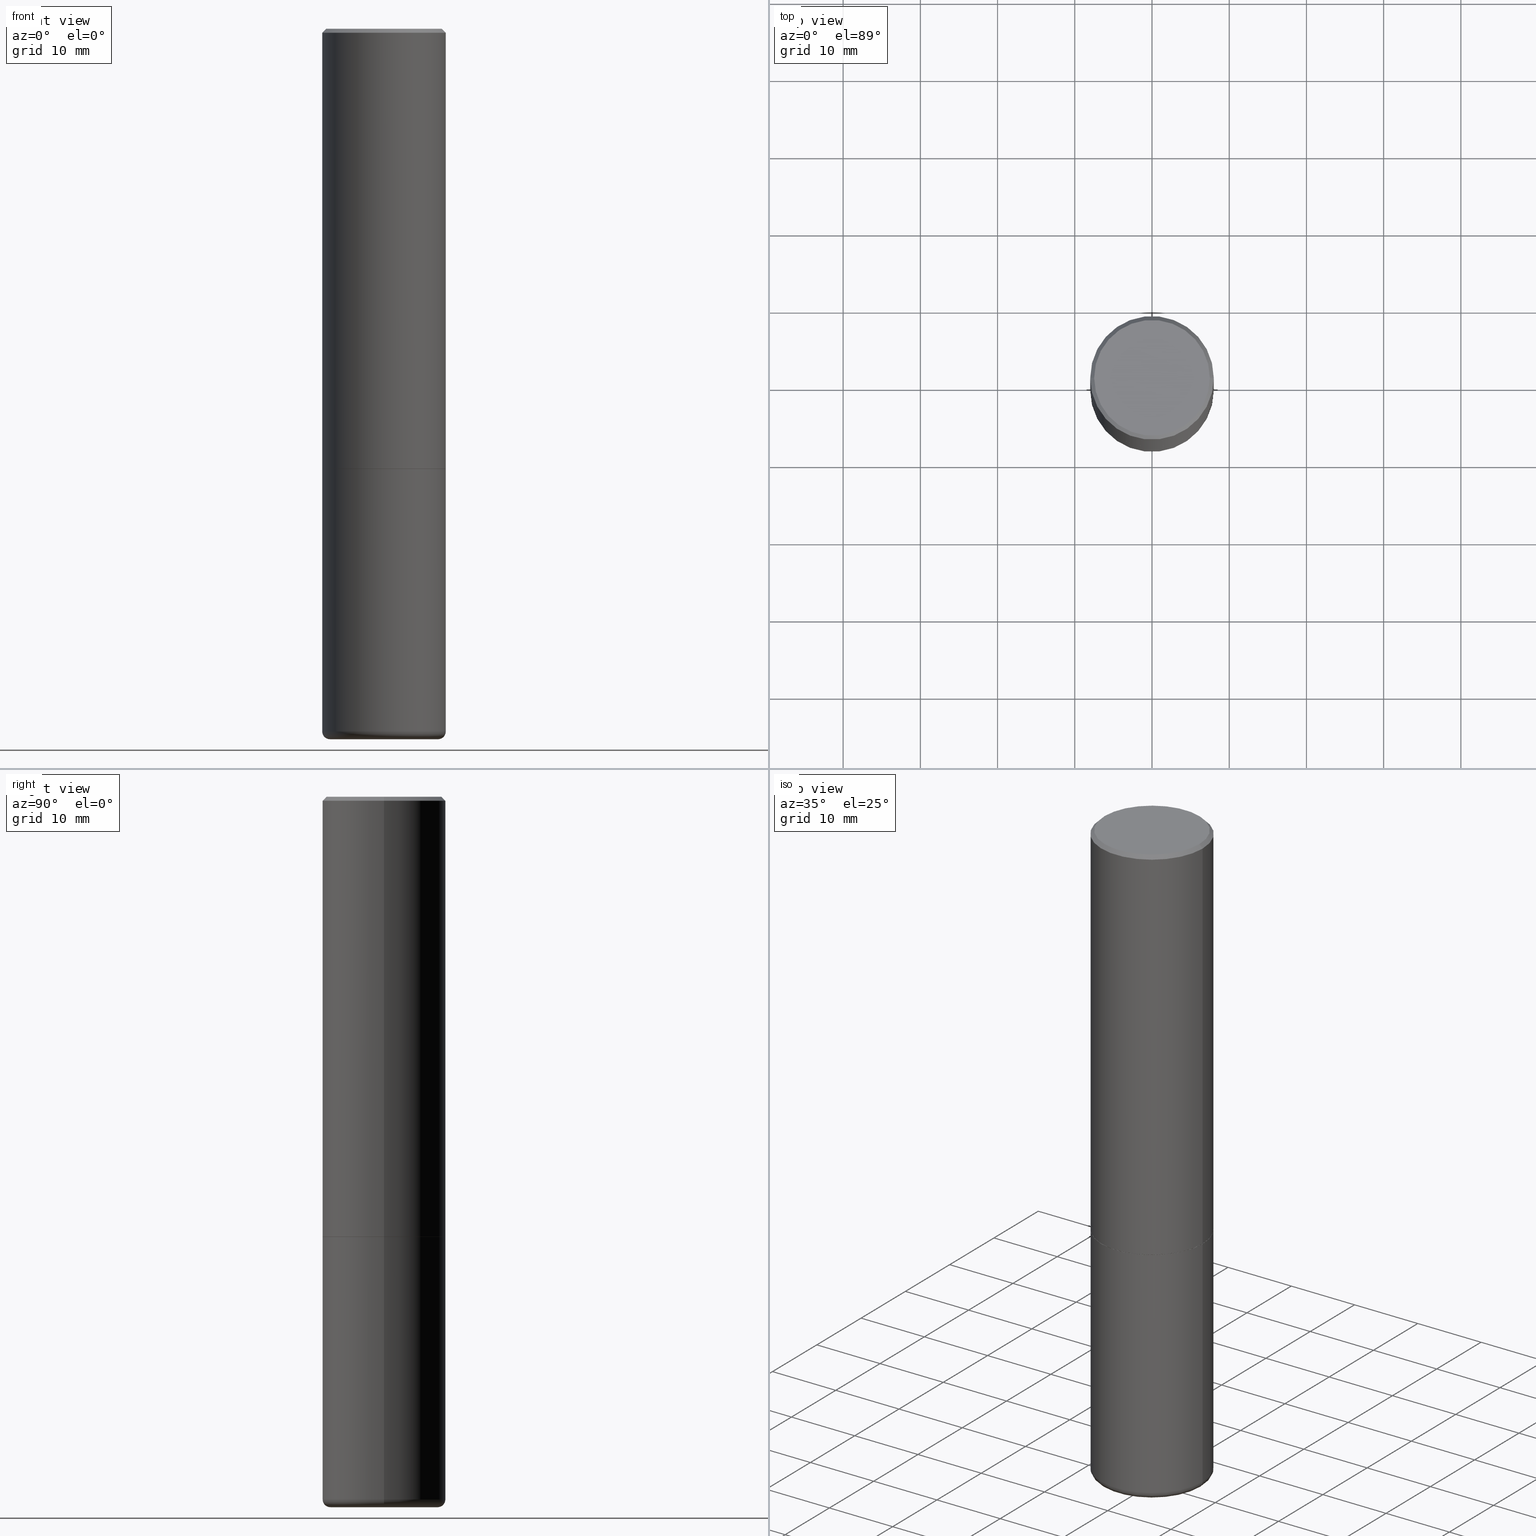
[diagram: canonical four-view strip — front | top / right | iso, engineering-drawing reading convention]
A machine part, canonical four-view strip (front | top / right | iso — engineering-drawing reading convention). The complete STEP part file that produces these views, byte-faithful:
ISO-10303-21;
HEADER;
FILE_DESCRIPTION (( 'STEP AP203' ),
    '1' );
FILE_NAME ('47040.STEP',
    '2024-03-05T14:08:50',
    ( '' ),
    ( '' ),
    'SwSTEP 2.0',
    'SolidWorks 2023',
    '' );
FILE_SCHEMA (( 'CONFIG_CONTROL_DESIGN' ));
ENDSEC;

DATA;
#1 = EDGE_CURVE ( 'NONE', #72, #77, #89, .T. ) ;
#2 = LINE ( 'NONE', #32, #104 ) ;
#3 = DIRECTION ( 'NONE',  ( -6.982962677686266711E-15, -1.000000000000000000, 3.491481338843145583E-15 ) ) ;
#4 = ADVANCED_FACE ( 'NONE', ( #323 ), #377, .F. ) ;
#5 = DIRECTION ( 'NONE',  ( 1.000000000000000000, -6.982962677686267499E-15, 4.874125435057324435E-29 ) ) ;
#6 = FACE_OUTER_BOUND ( 'NONE', #403, .T. ) ;
#7 = VERTEX_POINT ( 'NONE', #310 ) ;
#8 = AXIS2_PLACEMENT_3D ( 'NONE', #59, #283, #251 ) ;
#9 = ORIENTED_EDGE ( 'NONE', *, *, #232, .F. ) ;
#10 = DIRECTION ( 'NONE',  ( -1.000000000000000000, 6.982962677686266711E-15, 0.000000000000000000 ) ) ;
#11 = ORIENTED_EDGE ( 'NONE', *, *, #226, .T. ) ;
#12 =( LENGTH_UNIT ( ) NAMED_UNIT ( * ) SI_UNIT ( $, .METRE. ) );
#13 = ORIENTED_EDGE ( 'NONE', *, *, #232, .T. ) ;
#14 = EDGE_CURVE ( 'NONE', #284, #117, #289, .T. ) ;
#15 = VECTOR ( 'NONE', #311, 39.37007874015748143 ) ;
#16 = CC_DESIGN_APPROVAL ( #264, ( #159 ) ) ;
#17 = EDGE_LOOP ( 'NONE', ( #182, #274, #273, #152 ) ) ;
#18 = DIRECTION ( 'NONE',  ( 1.000000000000000000, -6.982962677686264344E-15, 0.000000000000000000 ) ) ;
#19 = CARTESIAN_POINT ( 'NONE',  ( 0.3139500000000000068, -1.002718525702362111E-14, -2.243999999999999773 ) ) ;
#20 = DIRECTION ( 'NONE',  ( -2.445468806185136877E-29, 3.491481338843145188E-15, 1.000000000000000000 ) ) ;
#21 = CARTESIAN_POINT ( 'NONE',  ( 0.000000000000000000, 0.000000000000000000, 0.000000000000000000 ) ) ;
#22 = AXIS2_PLACEMENT_3D ( 'NONE', #261, #161, #390 ) ;
#23 = DIRECTION ( 'NONE',  ( -0.7071067811865466846, 2.468850131082247989E-15, -0.7071067811865483499 ) ) ;
#24 = CARTESIAN_POINT ( 'NONE',  ( 5.487632001079445967E-29, -7.834884124364017250E-15, -2.243999999999999773 ) ) ;
#25 = DIRECTION ( 'NONE',  ( -1.000000000000000000, 6.982962677686265922E-15, -4.876176775795935793E-29 ) ) ;
#26 = DIRECTION ( 'NONE',  ( 2.445468806185136597E-29, -3.491481338843145583E-15, -1.000000000000000000 ) ) ;
#27 = MANIFOLD_SOLID_BREP ( 'Body-Move/Copy2[1]', #364 ) ;
#28 = APPROVAL_DATE_TIME ( #61, #264 ) ;
#29 = DIRECTION ( 'NONE',  ( -1.000000000000000000, 7.105427357601014480E-15, 0.000000000000000000 ) ) ;
#30 = FACE_OUTER_BOUND ( 'NONE', #242, .T. ) ;
#31 = PERSON_AND_ORGANIZATION ( #322, #56 ) ;
#32 = CARTESIAN_POINT ( 'NONE',  ( 0.3149500000000000077, -2.199284095337289871E-15, 1.535751875536930130E-29 ) ) ;
#33 = DIRECTION ( 'NONE',  ( -2.445468806185136597E-29, 3.491481338843145583E-15, 1.000000000000000000 ) ) ;
#34 = EDGE_CURVE ( 'NONE', #80, #142, #350, .T. ) ;
#35 = DIRECTION ( 'NONE',  ( 1.000000000000000000, -6.982962677686266711E-15, 0.000000000000000000 ) ) ;
#36 = CIRCLE ( 'NONE', #158, 0.03940000000000005997 ) ;
#37 = CARTESIAN_POINT ( 'NONE',  ( 0.2949499999999998234, -2.127023677808859286E-15, 1.792775245842319231E-16 ) ) ;
#38 = FACE_OUTER_BOUND ( 'NONE', #221, .T. ) ;
#39 = ORIENTED_EDGE ( 'NONE', *, *, #171, .T. ) ;
#40 = ADVANCED_FACE ( 'NONE', ( #219 ), #224, .T. ) ;
#41 = ORIENTED_EDGE ( 'NONE', *, *, #109, .F. ) ;
#42 = AXIS2_PLACEMENT_3D ( 'NONE', #87, #281, #118 ) ;
#43 = VECTOR ( 'NONE', #20, 39.37007874015748143 ) ;
#44 = APPLICATION_PROTOCOL_DEFINITION ( 'international standard', 'config_control_design', 1994, #197 ) ;
#45 = ORIENTED_EDGE ( 'NONE', *, *, #1, .F. ) ;
#46 = MECHANICAL_CONTEXT ( 'NONE', #197, 'mechanical' ) ;
#47 = ORIENTED_EDGE ( 'NONE', *, *, #76, .T. ) ;
#48 = ORIENTED_EDGE ( 'NONE', *, *, #226, .F. ) ;
#49 = AXIS2_PLACEMENT_3D ( 'NONE', #383, #100, #260 ) ;
#50 = VERTEX_POINT ( 'NONE', #415 ) ;
#51 = PRODUCT_DEFINITION_SHAPE ( 'NONE', 'NONE',  #371 ) ;
#52 = ORIENTED_EDGE ( 'NONE', *, *, #143, .F. ) ;
#53 = EDGE_CURVE ( 'NONE', #249, #7, #252, .T. ) ;
#54 = EDGE_LOOP ( 'NONE', ( #202, #394, #271, #170 ) ) ;
#55 = PERSON_AND_ORGANIZATION_ROLE ( 'design_supplier' ) ;
#56 = ORGANIZATION ( 'UNSPECIFIED', 'UNSPECIFIED', '' ) ;
#57 = DIRECTION ( 'NONE',  ( -1.000000000000000000, 6.982962677686266711E-15, 0.000000000000000000 ) ) ;
#58 = CALENDAR_DATE ( 2024, 5, 3 ) ;
#59 = CARTESIAN_POINT ( 'NONE',  ( 4.890937612370289799E-31, -6.982962677686315028E-17, -0.02000000000000006981 ) ) ;
#60 = CARTESIAN_POINT ( 'NONE',  ( 5.487632001079445967E-29, -7.834884124364017250E-15, -2.243999999999999773 ) ) ;
#61 = DATE_AND_TIME ( #209, #291 ) ;
#62 = FACE_OUTER_BOUND ( 'NONE', #112, .T. ) ;
#63 = CIRCLE ( 'NONE', #295, 0.3149500000000002853 ) ;
#64 = CARTESIAN_POINT ( 'NONE',  ( -4.384175940207923203E-45, 6.259441315597878405E-31, 1.792775245842172799E-16 ) ) ;
#65 = CARTESIAN_POINT ( 'NONE',  ( 4.890937612370289799E-31, -6.982962677686315028E-17, -0.02000000000000006981 ) ) ;
#66 = CARTESIAN_POINT ( 'NONE',  ( 5.485186532273261485E-29, -7.831392643025175821E-15, -2.242999999999999883 ) ) ;
#67 = CLOSED_SHELL ( 'NONE', ( #369, #88, #411, #40, #404, #82, #180, #99 ) ) ;
#68 = ADVANCED_FACE ( 'NONE', ( #407 ), #121, .T. ) ;
#69 = AXIS2_PLACEMENT_3D ( 'NONE', #65, #263, #35 ) ;
#70 = APPROVAL_ROLE ( '' ) ;
#71 = ADVANCED_FACE ( 'NONE', ( #418 ), #417, .T. ) ;
#72 = VERTEX_POINT ( 'NONE', #380 ) ;
#73 = ORIENTED_EDGE ( 'NONE', *, *, #320, .T. ) ;
#74 = APPROVAL_PERSON_ORGANIZATION ( #240, #264, #70 ) ;
#75 = FACE_OUTER_BOUND ( 'NONE', #178, .T. ) ;
#76 = EDGE_CURVE ( 'NONE', #208, #175, #244, .T. ) ;
#77 = VERTEX_POINT ( 'NONE', #288 ) ;
#78 = DIRECTION ( 'NONE',  ( 1.000000000000000000, -6.982962677686266711E-15, 4.876176775795936353E-29 ) ) ;
#79 = DIRECTION ( 'NONE',  ( -2.445468806185136597E-29, 3.491481338843145583E-15, 1.000000000000000000 ) ) ;
#80 = VERTEX_POINT ( 'NONE', #125 ) ;
#81 = VERTEX_POINT ( 'NONE', #245 ) ;
#82 = ADVANCED_FACE ( 'NONE', ( #375 ), #386, .T. ) ;
#83 = APPROVAL_PERSON_ORGANIZATION ( #272, #222, #204 ) ;
#84 = DIRECTION ( 'NONE',  ( 1.000000000000000000, -6.982962677686267499E-15, 0.000000000000000000 ) ) ;
#85 = CARTESIAN_POINT ( 'NONE',  ( 5.487632001079445967E-29, -7.834884124364017250E-15, -2.243999999999999773 ) ) ;
#86 = PRODUCT ( '47040', '47040', '', ( #46 ) ) ;
#87 = CARTESIAN_POINT ( 'NONE',  ( 8.857488016002564476E-29, -1.264614540928987199E-14, -3.621999999999999886 ) ) ;
#88 = ADVANCED_FACE ( 'NONE', ( #215 ), #150, .T. ) ;
#89 = LINE ( 'NONE', #191, #15 ) ;
#90 = CC_DESIGN_PERSON_AND_ORGANIZATION_ASSIGNMENT ( #176, #110, ( #371 ) ) ;
#91 = DIRECTION ( 'NONE',  ( -2.438088387897960049E-29, 3.491481338843145188E-15, 1.000000000000000000 ) ) ;
#92 = DIRECTION ( 'NONE',  ( -2.445468806185136597E-29, 3.491481338843145583E-15, 1.000000000000000000 ) ) ;
#93 = CALENDAR_DATE ( 2024, 5, 3 ) ;
#94 = LINE ( 'NONE', #287, #214 ) ;
#95 = APPROVAL_STATUS ( 'not_yet_approved' ) ;
#96 = CARTESIAN_POINT ( 'NONE',  ( 5.487632001079445967E-29, -7.834884124364017250E-15, -2.243999999999999773 ) ) ;
#97 = CIRCLE ( 'NONE', #69, 0.3149500000000000077 ) ;
#98 = LOCAL_TIME ( 9, 8, 50.00000000000000000, #137 ) ;
#99 = ADVANCED_FACE ( 'NONE', ( #30 ), #129, .F. ) ;
#100 = DIRECTION ( 'NONE',  ( -2.445468806185136597E-29, 3.491481338843145583E-15, 1.000000000000000000 ) ) ;
#101 = DIRECTION ( 'NONE',  ( 1.000000000000000000, -6.982962677686268288E-15, 4.883557194083114022E-29 ) ) ;
#102 = EDGE_CURVE ( 'NONE', #7, #72, #63, .T. ) ;
#103 = DIRECTION ( 'NONE',  ( -2.445468806185136597E-29, 3.491481338843145583E-15, 1.000000000000000000 ) ) ;
#104 = VECTOR ( 'NONE', #294, 39.37007874015748143 ) ;
#105 = DIRECTION ( 'NONE',  ( 2.445468806185136597E-29, -3.491481338843145583E-15, -1.000000000000000000 ) ) ;
#106 = ORIENTED_EDGE ( 'NONE', *, *, #154, .T. ) ;
#107 = DIRECTION ( 'NONE',  ( 0.000000000000000000, 0.000000000000000000, 1.000000000000000000 ) ) ;
#108 = ORIENTED_EDGE ( 'NONE', *, *, #109, .T. ) ;
#109 = EDGE_CURVE ( 'NONE', #50, #77, #379, .T. ) ;
#110 = PERSON_AND_ORGANIZATION_ROLE ( 'creator' ) ;
#111 = AXIS2_PLACEMENT_3D ( 'NONE', #24, #352, #213 ) ;
#112 = EDGE_LOOP ( 'NONE', ( #376, #331, #299, #305 ) ) ;
#113 = AXIS2_PLACEMENT_3D ( 'NONE', #216, #116, #405 ) ;
#114 = DATE_TIME_ROLE ( 'creation_date' ) ;
#115 = ORIENTED_EDGE ( 'NONE', *, *, #102, .T. ) ;
#116 = DIRECTION ( 'NONE',  ( -2.445468806185136597E-29, 3.491481338843145583E-15, 1.000000000000000000 ) ) ;
#117 = VERTEX_POINT ( 'NONE', #280 ) ;
#118 = DIRECTION ( 'NONE',  ( -1.000000000000000000, 6.982962677686265922E-15, -4.876176775795935793E-29 ) ) ;
#119 = AXIS2_PLACEMENT_3D ( 'NONE', #184, #181, #408 ) ;
#120 = ORIENTED_EDGE ( 'NONE', *, *, #143, .T. ) ;
#121 = PLANE ( 'NONE',  #42 ) ;
#122 = DATE_AND_TIME ( #93, #402 ) ;
#123 = AXIS2_PLACEMENT_3D ( 'NONE', #342, #92, #156 ) ;
#124 = CIRCLE ( 'NONE', #49, 0.3149500000000000077 ) ;
#125 = CARTESIAN_POINT ( 'NONE',  ( 0.2755500000000000171, -1.457030077512632343E-14, -3.621999999999999886 ) ) ;
#126 = CARTESIAN_POINT ( 'NONE',  ( 8.761136545038868759E-29, -1.250858104453945120E-14, -3.582599999999999785 ) ) ;
#127 = FACE_OUTER_BOUND ( 'NONE', #206, .T. ) ;
#128 = AXIS2_PLACEMENT_3D ( 'NONE', #309, #412, #187 ) ;
#129 = PLANE ( 'NONE',  #22 ) ;
#130 = CYLINDRICAL_SURFACE ( 'NONE', #255, 0.3149500000000000077 ) ;
#131 =( NAMED_UNIT ( * ) SI_UNIT ( $, .STERADIAN. ) SOLID_ANGLE_UNIT ( ) );
#132 = CC_DESIGN_APPROVAL ( #222, ( #371 ) ) ;
#133 = ORIENTED_EDGE ( 'NONE', *, *, #157, .T. ) ;
#134 = ORIENTED_EDGE ( 'NONE', *, *, #335, .T. ) ;
#135 = CARTESIAN_POINT ( 'NONE',  ( 0.000000000000000000, 0.000000000000000000, 0.000000000000000000 ) ) ;
#136 = ORIENTED_EDGE ( 'NONE', *, *, #34, .T. ) ;
#137 = COORDINATED_UNIVERSAL_TIME_OFFSET ( 5, 0, .BEHIND. ) ;
#138 = ORIENTED_EDGE ( 'NONE', *, *, #308, .F. ) ;
#139 = VECTOR ( 'NONE', #344, 39.37007874015748143 ) ;
#140 = EDGE_CURVE ( 'NONE', #142, #80, #199, .T. ) ;
#141 = SHAPE_DEFINITION_REPRESENTATION ( #51, #212 ) ;
#142 = VERTEX_POINT ( 'NONE', #149 ) ;
#143 = EDGE_CURVE ( 'NONE', #81, #370, #400, .T. ) ;
#144 = LINE ( 'NONE', #151, #139 ) ;
#145 = DIRECTION ( 'NONE',  ( 2.438088387897960049E-29, -3.491481338843145188E-15, -1.000000000000000000 ) ) ;
#146 = DIRECTION ( 'NONE',  ( -2.445468806185136597E-29, 3.491481338843145583E-15, 1.000000000000000000 ) ) ;
#147 = DIRECTION ( 'NONE',  ( -2.445468806185136597E-29, 3.491481338843145583E-15, 1.000000000000000000 ) ) ;
#148 = CIRCLE ( 'NONE', #119, 0.3149500000000002853 ) ;
#149 = CARTESIAN_POINT ( 'NONE',  ( -0.2755500000000000171, -1.047948579958296492E-14, -3.621999999999999886 ) ) ;
#150 = CYLINDRICAL_SURFACE ( 'NONE', #313, 0.3149500000000001743 ) ;
#151 = CARTESIAN_POINT ( 'NONE',  ( 0.3149500000000001743, -2.199284095337290660E-15, 1.535751875536930690E-29 ) ) ;
#152 = ORIENTED_EDGE ( 'NONE', *, *, #335, .F. ) ;
#153 = DESIGN_CONTEXT ( 'detailed design', #203, 'design' ) ;
#154 = EDGE_CURVE ( 'NONE', #175, #117, #321, .T. ) ;
#155 = CARTESIAN_POINT ( 'NONE',  ( 0.3149500000000000077, -1.003416821970130712E-14, -2.243999999999999773 ) ) ;
#156 = DIRECTION ( 'NONE',  ( 1.000000000000000000, -6.982962677686263555E-15, 0.000000000000000000 ) ) ;
#157 = EDGE_CURVE ( 'NONE', #72, #7, #148, .T. ) ;
#158 = AXIS2_PLACEMENT_3D ( 'NONE', #356, #3, #195 ) ;
#159 = PRODUCT_DEFINITION_FORMATION_WITH_SPECIFIED_SOURCE ( 'ANY', '', #86, .NOT_KNOWN. ) ;
#160 = DIRECTION ( 'NONE',  ( 1.000000000000000000, -6.982962677686264344E-15, 0.000000000000000000 ) ) ;
#161 = DIRECTION ( 'NONE',  ( 2.438088387897960049E-29, -3.491481338843145188E-15, -1.000000000000000000 ) ) ;
#162 = DIRECTION ( 'NONE',  ( 7.105427357601001859E-15, 1.000000000000000000, -3.491481338843145583E-15 ) ) ;
#163 = EDGE_CURVE ( 'NONE', #399, #249, #329, .T. ) ;
#164 = VECTOR ( 'NONE', #279, 39.37007874015748143 ) ;
#165 = MANIFOLD_SOLID_BREP ( 'Body-Move/Copy2[2]', #67 ) ;
#166 = TOROIDAL_SURFACE ( 'NONE', #409, 0.2755500000000000171, 0.03940000000000005997 ) ;
#167 = EDGE_CURVE ( 'NONE', #81, #77, #246, .T. ) ;
#168 = APPROVAL_DATE_TIME ( #368, #222 ) ;
#169 = COORDINATED_UNIVERSAL_TIME_OFFSET ( 5, 0, .BEHIND. ) ;
#170 = ORIENTED_EDGE ( 'NONE', *, *, #157, .F. ) ;
#171 = EDGE_CURVE ( 'NONE', #7, #50, #144, .T. ) ;
#172 = AXIS2_PLACEMENT_3D ( 'NONE', #318, #146, #18 ) ;
#173 = ORIENTED_EDGE ( 'NONE', *, *, #167, .T. ) ;
#174 = CC_DESIGN_PERSON_AND_ORGANIZATION_ASSIGNMENT ( #254, #317, ( #220 ) ) ;
#175 = VERTEX_POINT ( 'NONE', #373 ) ;
#176 = PERSON_AND_ORGANIZATION ( #322, #56 ) ;
#177 = ORIENTED_EDGE ( 'NONE', *, *, #349, .F. ) ;
#178 = EDGE_LOOP ( 'NONE', ( #48, #304, #108, #337 ) ) ;
#179 = AXIS2_PLACEMENT_3D ( 'NONE', #135, #103, #237 ) ;
#180 = ADVANCED_FACE ( 'NONE', ( #285 ), #414, .F. ) ;
#181 = DIRECTION ( 'NONE',  ( -2.445468806185136597E-29, 3.491481338843145583E-15, 1.000000000000000000 ) ) ;
#182 = ORIENTED_EDGE ( 'NONE', *, *, #267, .F. ) ;
#183 = ORIENTED_EDGE ( 'NONE', *, *, #163, .F. ) ;
#184 = CARTESIAN_POINT ( 'NONE',  ( 5.485186532273261485E-29, -7.831392643025175821E-15, -2.242999999999999883 ) ) ;
#185 = DIRECTION ( 'NONE',  ( -2.445468806185136597E-29, 3.491481338843145583E-15, 1.000000000000000000 ) ) ;
#186 = CIRCLE ( 'NONE', #301, 0.2949499999999998234 ) ;
#187 = DIRECTION ( 'NONE',  ( 1.000000000000000000, -6.982962677686267499E-15, 4.874125435057324435E-29 ) ) ;
#188 = DIRECTION ( 'NONE',  ( 1.000000000000000000, -6.982962677686268288E-15, 0.000000000000000000 ) ) ;
#189 = PERSON_AND_ORGANIZATION_ROLE ( 'creator' ) ;
#190 = DIRECTION ( 'NONE',  ( 1.000000000000000000, -6.982962677686265922E-15, 4.876176775795935793E-29 ) ) ;
#191 = CARTESIAN_POINT ( 'NONE',  ( -0.3149500000000001743, 2.237854346276436774E-15, -1.549218606675783237E-29 ) ) ;
#192 = COORDINATED_UNIVERSAL_TIME_OFFSET ( 5, 0, .BEHIND. ) ;
#193 = DATE_TIME_ROLE ( 'classification_date' ) ;
#194 = PRODUCT_RELATED_PRODUCT_CATEGORY ( 'detail', '', ( #86 ) ) ;
#195 = DIRECTION ( 'NONE',  ( 1.000000000000000000, -6.982962677686267499E-15, 0.000000000000000000 ) ) ;
#196 = DIRECTION ( 'NONE',  ( 1.000000000000000000, -6.982962677686265922E-15, 4.876176775795935232E-29 ) ) ;
#197 = APPLICATION_CONTEXT ( 'configuration controlled 3d designs of mechanical parts and assemblies' ) ;
#198 = DIRECTION ( 'NONE',  ( -2.445468806185136597E-29, 3.491481338843145583E-15, 1.000000000000000000 ) ) ;
#199 = CIRCLE ( 'NONE', #113, 0.2755500000000000171 ) ;
#200 = CC_DESIGN_SECURITY_CLASSIFICATION ( #220, ( #159 ) ) ;
#201 = CARTESIAN_POINT ( 'NONE',  ( -0.3139500000000000068, -5.598836751096959871E-15, -2.243999999999999773 ) ) ;
#202 = ORIENTED_EDGE ( 'NONE', *, *, #326, .F. ) ;
#203 = APPLICATION_CONTEXT ( 'configuration controlled 3d designs of mechanical parts and assemblies' ) ;
#204 = APPROVAL_ROLE ( '' ) ;
#205 = AXIS2_PLACEMENT_3D ( 'NONE', #302, #361, #78 ) ;
#206 = EDGE_LOOP ( 'NONE', ( #47, #106, #363, #396 ) ) ;
#207 =( CONVERSION_BASED_UNIT ( 'INCH', #391 ) LENGTH_UNIT ( ) NAMED_UNIT ( #243 ) );
#208 = VERTEX_POINT ( 'NONE', #292 ) ;
#209 = CALENDAR_DATE ( 2024, 5, 3 ) ;
#210 = ADVANCED_FACE ( 'NONE', ( #325 ), #166, .T. ) ;
#211 = ORIENTED_EDGE ( 'NONE', *, *, #171, .F. ) ;
#212 = ADVANCED_BREP_SHAPE_REPRESENTATION ( '47040', ( #27, #165, #269 ), #314 ) ;
#213 = DIRECTION ( 'NONE',  ( 1.000000000000000000, -6.982962677686266711E-15, 0.000000000000000000 ) ) ;
#214 = VECTOR ( 'NONE', #296, 39.37007874015748143 ) ;
#215 = FACE_OUTER_BOUND ( 'NONE', #367, .T. ) ;
#216 = CARTESIAN_POINT ( 'NONE',  ( 8.857488016002564476E-29, -1.264614540928987199E-14, -3.621999999999999886 ) ) ;
#217 = DIRECTION ( 'NONE',  ( 1.000000000000000000, -6.982962677686268288E-15, 4.883557194083114022E-29 ) ) ;
#218 = PERSON_AND_ORGANIZATION ( #322, #56 ) ;
#219 = FACE_OUTER_BOUND ( 'NONE', #340, .T. ) ;
#220 = SECURITY_CLASSIFICATION ( '', '', #353 ) ;
#221 = EDGE_LOOP ( 'NONE', ( #236, #134, #277, #9 ) ) ;
#222 = APPROVAL ( #398, 'UNSPECIFIED' ) ;
#223 = DIRECTION ( 'NONE',  ( -2.445468806185136597E-29, 3.491481338843145583E-15, 1.000000000000000000 ) ) ;
#224 = CONICAL_SURFACE ( 'NONE', #341, 0.3149500000000000077, 0.7853981633974471688 ) ;
#225 = DIRECTION ( 'NONE',  ( 1.000000000000000000, -6.982962677686266711E-15, 4.876176775795936353E-29 ) ) ;
#226 = EDGE_CURVE ( 'NONE', #370, #81, #186, .T. ) ;
#227 = DIRECTION ( 'NONE',  ( -2.445468806185136597E-29, 3.491481338843145583E-15, 1.000000000000000000 ) ) ;
#228 = CARTESIAN_POINT ( 'NONE',  ( -0.2755500000000000171, -1.055068053615249541E-14, -3.582599999999999785 ) ) ;
#229 = AXIS2_PLACEMENT_3D ( 'NONE', #85, #185, #410 ) ;
#230 =( NAMED_UNIT ( * ) PLANE_ANGLE_UNIT ( ) SI_UNIT ( $, .RADIAN. ) );
#231 = APPROVAL_PERSON_ORGANIZATION ( #384, #270, #348 ) ;
#232 = EDGE_CURVE ( 'NONE', #117, #284, #124, .T. ) ;
#233 = CYLINDRICAL_SURFACE ( 'NONE', #205, 0.3149500000000000077 ) ;
#234 = ORIENTED_EDGE ( 'NONE', *, *, #140, .F. ) ;
#235 = PERSON_AND_ORGANIZATION ( #322, #56 ) ;
#236 = ORIENTED_EDGE ( 'NONE', *, *, #154, .F. ) ;
#237 = DIRECTION ( 'NONE',  ( 1.000000000000000000, -6.982962677686265922E-15, 4.876176775795935232E-29 ) ) ;
#238 = AXIS2_PLACEMENT_3D ( 'NONE', #258, #227, #160 ) ;
#239 = EDGE_LOOP ( 'NONE', ( #247, #234 ) ) ;
#240 = PERSON_AND_ORGANIZATION ( #322, #56 ) ;
#241 = EDGE_CURVE ( 'NONE', #80, #208, #36, .T. ) ;
#242 = EDGE_LOOP ( 'NONE', ( #120, #11 ) ) ;
#243 = DIMENSIONAL_EXPONENTS ( 1.000000000000000000, 0.000000000000000000, 0.000000000000000000, 0.000000000000000000, 0.000000000000000000, 0.000000000000000000, 0.000000000000000000 ) ;
#244 = CIRCLE ( 'NONE', #123, 0.3149500000000000077 ) ;
#245 = CARTESIAN_POINT ( 'NONE',  ( -0.2949499999999998234, 2.094539655171995318E-15, 1.792775245842027353E-16 ) ) ;
#246 = LINE ( 'NONE', #312, #351 ) ;
#247 = ORIENTED_EDGE ( 'NONE', *, *, #34, .F. ) ;
#248 = CC_DESIGN_DATE_AND_TIME_ASSIGNMENT ( #122, #193, ( #220 ) ) ;
#249 = VERTEX_POINT ( 'NONE', #385 ) ;
#250 = COORDINATED_UNIVERSAL_TIME_OFFSET ( 5, 0, .BEHIND. ) ;
#251 = DIRECTION ( 'NONE',  ( 1.000000000000000000, -6.982962677686266711E-15, 0.000000000000000000 ) ) ;
#252 = LINE ( 'NONE', #19, #164 ) ;
#253 = AXIS2_PLACEMENT_3D ( 'NONE', #60, #145, #25 ) ;
#254 = PERSON_AND_ORGANIZATION ( #322, #56 ) ;
#255 = AXIS2_PLACEMENT_3D ( 'NONE', #327, #33, #225 ) ;
#256 = CC_DESIGN_APPROVAL ( #270, ( #220 ) ) ;
#257 = ADVANCED_FACE ( 'NONE', ( #127 ), #130, .T. ) ;
#258 = CARTESIAN_POINT ( 'NONE',  ( 5.487632001079445967E-29, -7.834884124364017250E-15, -2.243999999999999773 ) ) ;
#259 = CARTESIAN_POINT ( 'NONE',  ( 8.761136545038868759E-29, -1.250858104453945120E-14, -3.582599999999999785 ) ) ;
#260 = DIRECTION ( 'NONE',  ( 1.000000000000000000, -6.982962677686266711E-15, 0.000000000000000000 ) ) ;
#261 = CARTESIAN_POINT ( 'NONE',  ( 2.059624841783562880E-15, 0.2949499999999998234, -9.401736585996764239E-16 ) ) ;
#262 = CONICAL_SURFACE ( 'NONE', #290, 0.3149500000000000077, 0.7853981633974471688 ) ;
#263 = DIRECTION ( 'NONE',  ( -2.445468806185136597E-29, 3.491481338843145583E-15, 1.000000000000000000 ) ) ;
#264 = APPROVAL ( #266, 'UNSPECIFIED' ) ;
#265 = DIRECTION ( 'NONE',  ( -2.445468806185136597E-29, 3.491481338843145583E-15, 1.000000000000000000 ) ) ;
#266 = APPROVAL_STATUS ( 'not_yet_approved' ) ;
#267 = EDGE_CURVE ( 'NONE', #142, #175, #357, .T. ) ;
#268 = DIRECTION ( 'NONE',  ( 1.000000000000000000, 0.000000000000000000, 0.000000000000000000 ) ) ;
#269 = AXIS2_PLACEMENT_3D ( 'NONE', #300, #107, #268 ) ;
#270 = APPROVAL ( #95, 'UNSPECIFIED' ) ;
#271 = ORIENTED_EDGE ( 'NONE', *, *, #53, .T. ) ;
#272 = PERSON_AND_ORGANIZATION ( #322, #56 ) ;
#273 = ORIENTED_EDGE ( 'NONE', *, *, #241, .T. ) ;
#274 = ORIENTED_EDGE ( 'NONE', *, *, #140, .T. ) ;
#275 = EDGE_CURVE ( 'NONE', #208, #284, #2, .T. ) ;
#276 = CALENDAR_DATE ( 2024, 5, 3 ) ;
#277 = ORIENTED_EDGE ( 'NONE', *, *, #275, .T. ) ;
#278 = ORIENTED_EDGE ( 'NONE', *, *, #241, .F. ) ;
#279 = DIRECTION ( 'NONE',  ( 0.7071067811866199593, -2.468850131083015945E-15, 0.7071067811864750752 ) ) ;
#280 = CARTESIAN_POINT ( 'NONE',  ( -0.3149500000000000077, -7.933878238175299817E-15, -2.243999999999999773 ) ) ;
#281 = DIRECTION ( 'NONE',  ( 2.438088387897960049E-29, -3.491481338843145188E-15, -1.000000000000000000 ) ) ;
#282 = AXIS2_PLACEMENT_3D ( 'NONE', #228, #162, #29 ) ;
#283 = DIRECTION ( 'NONE',  ( -2.445468806185136597E-29, 3.491481338843145583E-15, 1.000000000000000000 ) ) ;
#284 = VERTEX_POINT ( 'NONE', #155 ) ;
#285 = FACE_OUTER_BOUND ( 'NONE', #372, .T. ) ;
#286 = CARTESIAN_POINT ( 'NONE',  ( 8.857488016002564476E-29, -1.264614540928987199E-14, -3.621999999999999886 ) ) ;
#287 = CARTESIAN_POINT ( 'NONE',  ( -0.3139500000000000068, -5.604135205445183851E-15, -2.243999999999999773 ) ) ;
#288 = CARTESIAN_POINT ( 'NONE',  ( -0.3149500000000000077, 2.129454468560426573E-15, -0.02000000000000006981 ) ) ;
#289 = CIRCLE ( 'NONE', #111, 0.3149500000000000077 ) ;
#290 = AXIS2_PLACEMENT_3D ( 'NONE', #395, #105, #10 ) ;
#291 = LOCAL_TIME ( 9, 8, 50.00000000000000000, #169 ) ;
#292 = CARTESIAN_POINT ( 'NONE',  ( 0.3149500000000000077, -1.470786513987673949E-14, -3.582599999999999785 ) ) ;
#293 = CARTESIAN_POINT ( 'NONE',  ( 8.761136545038868759E-29, -1.250858104453945120E-14, -3.582599999999999785 ) ) ;
#294 = DIRECTION ( 'NONE',  ( -2.445468806185136877E-29, 3.491481338843145188E-15, 1.000000000000000000 ) ) ;
#295 = AXIS2_PLACEMENT_3D ( 'NONE', #66, #79, #84 ) ;
#296 = DIRECTION ( 'NONE',  ( -0.7071067811866199593, 7.493145998870616062E-15, 0.7071067811864750752 ) ) ;
#297 = DIRECTION ( 'NONE',  ( 1.000000000000000000, -6.982962677686264344E-15, 0.000000000000000000 ) ) ;
#298 = CC_DESIGN_PERSON_AND_ORGANIZATION_ASSIGNMENT ( #218, #55, ( #159 ) ) ;
#299 = ORIENTED_EDGE ( 'NONE', *, *, #102, .F. ) ;
#300 = CARTESIAN_POINT ( 'NONE',  ( 0.000000000000000000, 0.000000000000000000, 0.000000000000000000 ) ) ;
#301 = AXIS2_PLACEMENT_3D ( 'NONE', #64, #328, #5 ) ;
#302 = CARTESIAN_POINT ( 'NONE',  ( 0.000000000000000000, 0.000000000000000000, 0.000000000000000000 ) ) ;
#303 = UNCERTAINTY_MEASURE_WITH_UNIT (LENGTH_MEASURE( 1.000000000000000082E-05 ), #207, 'distance_accuracy_value', 'NONE');
#304 = ORIENTED_EDGE ( 'NONE', *, *, #349, .T. ) ;
#305 = ORIENTED_EDGE ( 'NONE', *, *, #53, .F. ) ;
#306 = AXIS2_PLACEMENT_3D ( 'NONE', #293, #265, #358 ) ;
#307 = EDGE_LOOP ( 'NONE', ( #136, #332, #338, #278 ) ) ;
#308 = EDGE_CURVE ( 'NONE', #249, #399, #392, .T. ) ;
#309 = CARTESIAN_POINT ( 'NONE',  ( -4.384175940207923203E-45, 6.259441315597878405E-31, 1.792775245842172799E-16 ) ) ;
#310 = CARTESIAN_POINT ( 'NONE',  ( 0.3149500000000002853, -1.003067673836246727E-14, -2.242999999999999883 ) ) ;
#311 = DIRECTION ( 'NONE',  ( -2.445468806185136877E-29, 3.491481338843145188E-15, 1.000000000000000000 ) ) ;
#312 = CARTESIAN_POINT ( 'NONE',  ( -0.3149500000000000077, 2.129454468560426573E-15, -0.02000000000000006981 ) ) ;
#313 = AXIS2_PLACEMENT_3D ( 'NONE', #21, #147, #196 ) ;
#314 =( GEOMETRIC_REPRESENTATION_CONTEXT ( 3 ) GLOBAL_UNCERTAINTY_ASSIGNED_CONTEXT ( ( #303 ) ) GLOBAL_UNIT_ASSIGNED_CONTEXT ( ( #207, #230, #131 ) ) REPRESENTATION_CONTEXT ( 'NONE', 'WORKASPACE' ) );
#315 = ORIENTED_EDGE ( 'NONE', *, *, #1, .T. ) ;
#316 = LOCAL_TIME ( 9, 8, 50.00000000000000000, #250 ) ;
#317 = PERSON_AND_ORGANIZATION_ROLE ( 'classification_officer' ) ;
#318 = CARTESIAN_POINT ( 'NONE',  ( 5.487632001079445967E-29, -7.834884124364017250E-15, -2.243999999999999773 ) ) ;
#319 = EDGE_LOOP ( 'NONE', ( #345, #13 ) ) ;
#320 = EDGE_CURVE ( 'NONE', #77, #50, #97, .T. ) ;
#321 = LINE ( 'NONE', #346, #43 ) ;
#322 = PERSON ( 'UNSPECIFIED', 'UNSPECIFIED', 'UNSPECIFIED', ('UNSPECIFIED'), ('UNSPECIFIED'), ('UNSPECIFIED') ) ;
#323 = FACE_OUTER_BOUND ( 'NONE', #319, .T. ) ;
#324 = LOCAL_TIME ( 9, 8, 50.00000000000000000, #330 ) ;
#325 = FACE_OUTER_BOUND ( 'NONE', #307, .T. ) ;
#326 = EDGE_CURVE ( 'NONE', #399, #72, #94, .T. ) ;
#327 = CARTESIAN_POINT ( 'NONE',  ( 0.000000000000000000, 0.000000000000000000, 0.000000000000000000 ) ) ;
#328 = DIRECTION ( 'NONE',  ( -2.445468806185136597E-29, 3.491481338843145583E-15, 1.000000000000000000 ) ) ;
#329 = CIRCLE ( 'NONE', #172, 0.3139500000000000068 ) ;
#330 = COORDINATED_UNIVERSAL_TIME_OFFSET ( 5, 0, .BEHIND. ) ;
#331 = ORIENTED_EDGE ( 'NONE', *, *, #326, .T. ) ;
#332 = ORIENTED_EDGE ( 'NONE', *, *, #267, .T. ) ;
#333 = AXIS2_PLACEMENT_3D ( 'NONE', #286, #413, #188 ) ;
#334 = CALENDAR_DATE ( 2024, 5, 3 ) ;
#335 = EDGE_CURVE ( 'NONE', #175, #208, #336, .T. ) ;
#336 = CIRCLE ( 'NONE', #306, 0.3149500000000000077 ) ;
#337 = ORIENTED_EDGE ( 'NONE', *, *, #167, .F. ) ;
#338 = ORIENTED_EDGE ( 'NONE', *, *, #76, .F. ) ;
#339 = DATE_AND_TIME ( #58, #316 ) ;
#340 = EDGE_LOOP ( 'NONE', ( #177, #52, #173, #73 ) ) ;
#341 = AXIS2_PLACEMENT_3D ( 'NONE', #354, #26, #57 ) ;
#342 = CARTESIAN_POINT ( 'NONE',  ( 8.761136545038868759E-29, -1.250858104453945120E-14, -3.582599999999999785 ) ) ;
#343 = CC_DESIGN_DATE_AND_TIME_ASSIGNMENT ( #401, #114, ( #371 ) ) ;
#344 = DIRECTION ( 'NONE',  ( -2.445468806185136877E-29, 3.491481338843145188E-15, 1.000000000000000000 ) ) ;
#345 = ORIENTED_EDGE ( 'NONE', *, *, #14, .T. ) ;
#346 = CARTESIAN_POINT ( 'NONE',  ( -0.3149500000000000077, 2.237854346276435590E-15, -1.549218606675782676E-29 ) ) ;
#347 = DIRECTION ( 'NONE',  ( -2.445468806185136597E-29, 3.491481338843145583E-15, 1.000000000000000000 ) ) ;
#348 = APPROVAL_ROLE ( '' ) ;
#349 = EDGE_CURVE ( 'NONE', #370, #50, #416, .T. ) ;
#350 = CIRCLE ( 'NONE', #333, 0.2755500000000000171 ) ;
#351 = VECTOR ( 'NONE', #23, 39.37007874015748143 ) ;
#352 = DIRECTION ( 'NONE',  ( -2.445468806185136597E-29, 3.491481338843145583E-15, 1.000000000000000000 ) ) ;
#353 = SECURITY_CLASSIFICATION_LEVEL ( 'unclassified' ) ;
#354 = CARTESIAN_POINT ( 'NONE',  ( 4.890937612370289799E-31, -6.982962677686315028E-17, -0.02000000000000006981 ) ) ;
#355 = DIRECTION ( 'NONE',  ( 0.7071067811865466846, -7.319954787623252890E-15, -0.7071067811865483499 ) ) ;
#356 = CARTESIAN_POINT ( 'NONE',  ( 0.2755500000000000171, -1.443273641037590422E-14, -3.582599999999999785 ) ) ;
#357 = CIRCLE ( 'NONE', #282, 0.03940000000000005997 ) ;
#358 = DIRECTION ( 'NONE',  ( 1.000000000000000000, -6.982962677686263555E-15, 0.000000000000000000 ) ) ;
#359 = CC_DESIGN_PERSON_AND_ORGANIZATION_ASSIGNMENT ( #31, #189, ( #159 ) ) ;
#360 = AXIS2_PLACEMENT_3D ( 'NONE', #259, #347, #217 ) ;
#361 = DIRECTION ( 'NONE',  ( -2.445468806185136597E-29, 3.491481338843145583E-15, 1.000000000000000000 ) ) ;
#362 = APPLICATION_PROTOCOL_DEFINITION ( 'international standard', 'config_control_design', 1994, #203 ) ;
#363 = ORIENTED_EDGE ( 'NONE', *, *, #14, .F. ) ;
#364 = CLOSED_SHELL ( 'NONE', ( #257, #210, #4, #382, #71, #68 ) ) ;
#365 = AXIS2_PLACEMENT_3D ( 'NONE', #378, #91, #190 ) ;
#366 = CYLINDRICAL_SURFACE ( 'NONE', #179, 0.3149500000000001743 ) ;
#367 = EDGE_LOOP ( 'NONE', ( #115, #315, #41, #211 ) ) ;
#368 = DATE_AND_TIME ( #334, #324 ) ;
#369 = ADVANCED_FACE ( 'NONE', ( #62 ), #387, .T. ) ;
#370 = VERTEX_POINT ( 'NONE', #37 ) ;
#371 = PRODUCT_DEFINITION ( 'UNKNOWN', '', #159, #153 ) ;
#372 = EDGE_LOOP ( 'NONE', ( #138, #183 ) ) ;
#373 = CARTESIAN_POINT ( 'NONE',  ( -0.3149500000000000077, -1.027072669826301679E-14, -3.582599999999999785 ) ) ;
#374 = AXIS2_PLACEMENT_3D ( 'NONE', #96, #223, #297 ) ;
#375 = FACE_OUTER_BOUND ( 'NONE', #54, .T. ) ;
#376 = ORIENTED_EDGE ( 'NONE', *, *, #308, .T. ) ;
#377 = PLANE ( 'NONE',  #253 ) ;
#378 = CARTESIAN_POINT ( 'NONE',  ( 5.487632001079445967E-29, -7.834884124364017250E-15, -2.243999999999999773 ) ) ;
#379 = CIRCLE ( 'NONE', #8, 0.3149500000000000077 ) ;
#380 = CARTESIAN_POINT ( 'NONE',  ( -0.3149500000000002853, -1.712756788624580222E-15, -2.242999999999999883 ) ) ;
#381 = APPROVAL_DATE_TIME ( #339, #270 ) ;
#382 = ADVANCED_FACE ( 'NONE', ( #38 ), #233, .T. ) ;
#383 = CARTESIAN_POINT ( 'NONE',  ( 5.487632001079445967E-29, -7.834884124364017250E-15, -2.243999999999999773 ) ) ;
#384 = PERSON_AND_ORGANIZATION ( #322, #56 ) ;
#385 = CARTESIAN_POINT ( 'NONE',  ( 0.3139500000000000068, -1.002718525702362111E-14, -2.243999999999999773 ) ) ;
#386 = CONICAL_SURFACE ( 'NONE', #229, 0.3139500000000000068, 0.7853981633975507526 ) ;
#387 = CONICAL_SURFACE ( 'NONE', #374, 0.3139500000000000068, 0.7853981633975507526 ) ;
#388 = VECTOR ( 'NONE', #355, 39.37007874015748143 ) ;
#389 = CARTESIAN_POINT ( 'NONE',  ( 0.3149500000000000077, -2.230543471175007450E-15, -0.02000000000000006981 ) ) ;
#390 = DIRECTION ( 'NONE',  ( -1.000000000000000000, 6.982962677686265922E-15, -4.876176775795935793E-29 ) ) ;
#391 = LENGTH_MEASURE_WITH_UNIT ( LENGTH_MEASURE( 0.02539999999999999897 ), #12 );
#392 = CIRCLE ( 'NONE', #238, 0.3139500000000000068 ) ;
#393 = PERSON_AND_ORGANIZATION_ROLE ( 'design_owner' ) ;
#394 = ORIENTED_EDGE ( 'NONE', *, *, #163, .T. ) ;
#395 = CARTESIAN_POINT ( 'NONE',  ( 4.890937612370289799E-31, -6.982962677686315028E-17, -0.02000000000000006981 ) ) ;
#396 = ORIENTED_EDGE ( 'NONE', *, *, #275, .F. ) ;
#397 = CC_DESIGN_PERSON_AND_ORGANIZATION_ASSIGNMENT ( #235, #393, ( #86 ) ) ;
#398 = APPROVAL_STATUS ( 'not_yet_approved' ) ;
#399 = VERTEX_POINT ( 'NONE', #201 ) ;
#400 = CIRCLE ( 'NONE', #128, 0.2949499999999998234 ) ;
#401 = DATE_AND_TIME ( #276, #98 ) ;
#402 = LOCAL_TIME ( 9, 8, 50.00000000000000000, #192 ) ;
#403 = EDGE_LOOP ( 'NONE', ( #45, #133, #39, #406 ) ) ;
#404 = ADVANCED_FACE ( 'NONE', ( #6 ), #366, .T. ) ;
#405 = DIRECTION ( 'NONE',  ( 1.000000000000000000, -6.982962677686268288E-15, 0.000000000000000000 ) ) ;
#406 = ORIENTED_EDGE ( 'NONE', *, *, #320, .F. ) ;
#407 = FACE_OUTER_BOUND ( 'NONE', #239, .T. ) ;
#408 = DIRECTION ( 'NONE',  ( 1.000000000000000000, -6.982962677686267499E-15, 0.000000000000000000 ) ) ;
#409 = AXIS2_PLACEMENT_3D ( 'NONE', #126, #198, #101 ) ;
#410 = DIRECTION ( 'NONE',  ( 1.000000000000000000, -6.982962677686264344E-15, 0.000000000000000000 ) ) ;
#411 = ADVANCED_FACE ( 'NONE', ( #75 ), #262, .T. ) ;
#412 = DIRECTION ( 'NONE',  ( -2.445468806185136597E-29, 3.491481338843145583E-15, 1.000000000000000000 ) ) ;
#413 = DIRECTION ( 'NONE',  ( -2.445468806185136597E-29, 3.491481338843145583E-15, 1.000000000000000000 ) ) ;
#414 = PLANE ( 'NONE',  #365 ) ;
#415 = CARTESIAN_POINT ( 'NONE',  ( 0.3149500000000000077, -2.230543471175007450E-15, -0.02000000000000006981 ) ) ;
#416 = LINE ( 'NONE', #389, #388 ) ;
#417 = TOROIDAL_SURFACE ( 'NONE', #360, 0.2755500000000000171, 0.03940000000000005997 ) ;
#418 = FACE_OUTER_BOUND ( 'NONE', #17, .T. ) ;
ENDSEC;
END-ISO-10303-21;
